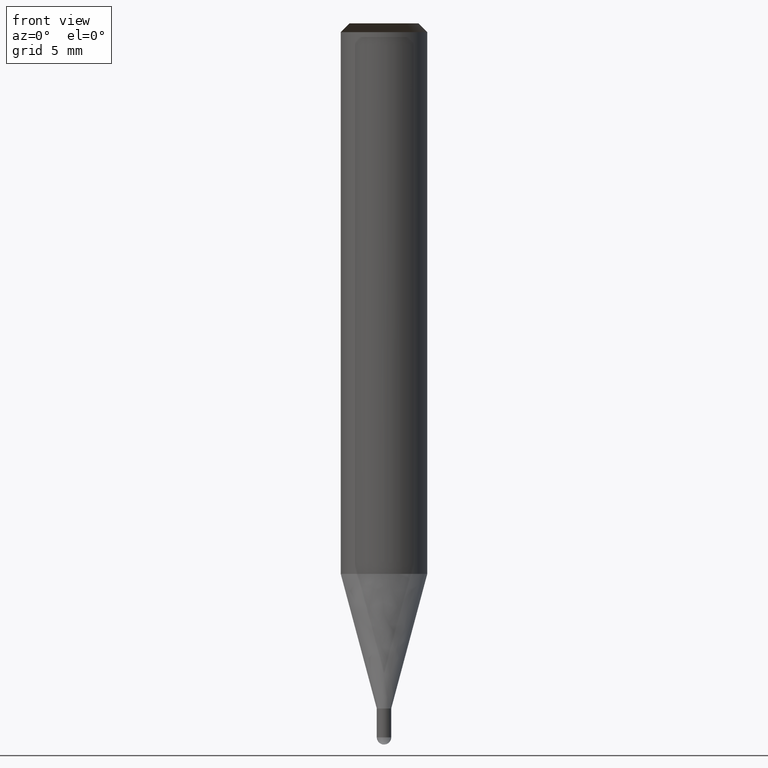
[diagram: clean part render]
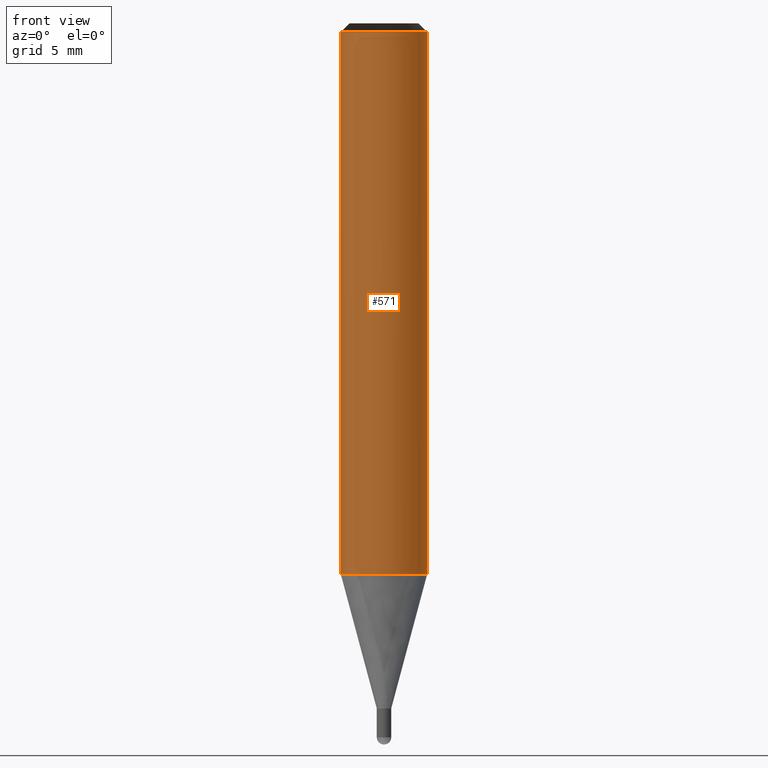
[diagram: same view with one face highlighted and labeled with its STEP entity id]
A machine part, front view. The second image highlights one B-rep face of the part: STEP entity #571.
In plain terms, the highlighted face is a freeform B-spline surface patch.
Its self-contained STEP definition (entity closure, byte-faithful):
#243=CARTESIAN_POINT('',(3.0,0.0,-0.0));
#247=CARTESIAN_POINT('',(-3.0,0.0,-0.0));
#248=CARTESIAN_POINT('',(3.0,0.0,37.569));
#252=CARTESIAN_POINT('',(-3.0,0.0,37.569));
#262=CARTESIAN_POINT('',(-3.0,-3.0,-0.0));
#263=CARTESIAN_POINT('',(0.0,-3.0,-0.0));
#264=CARTESIAN_POINT('',(3.0,-3.0,-0.0));
#265=CARTESIAN_POINT('',(-3.0,-3.0,37.569));
#266=CARTESIAN_POINT('',(0.0,-3.0,37.569));
#267=CARTESIAN_POINT('',(3.0,-3.0,37.569));
#552=(
BOUNDED_SURFACE()
B_SPLINE_SURFACE(1,2,(
(#247,#262,#263,#264,#243),
(#252,#265,#266,#267,#248)
), .UNSPECIFIED.,.F.,.F.,.F.)
B_SPLINE_SURFACE_WITH_KNOTS((2,2),(3,2,3),(
0.0,1.0),(
0.0,0.5,1.0), .UNSPECIFIED.)
GEOMETRIC_REPRESENTATION_ITEM()
RATIONAL_B_SPLINE_SURFACE(((1.0,0.707106781187,1.0,0.707106781187,1.0),
(1.0,0.707106781187,1.0,0.707106781187,1.0)
))
REPRESENTATION_ITEM('')
SURFACE()
);
#553=(
BOUNDED_CURVE()
B_SPLINE_CURVE(1,(#252,#247),.UNSPECIFIED.,.F.,.F.)
B_SPLINE_CURVE_WITH_KNOTS((2,2),
(0.0,1.0),.UNSPECIFIED.)
CURVE()
GEOMETRIC_REPRESENTATION_ITEM()
RATIONAL_B_SPLINE_CURVE((1.0,1.0))
REPRESENTATION_ITEM('')
);
#554=(
BOUNDED_CURVE()
B_SPLINE_CURVE(2,(#247,#262,#263,#264,#243),.UNSPECIFIED.,.F.,.F.)
B_SPLINE_CURVE_WITH_KNOTS((3,2,3),
(0.0,0.5,1.0),.UNSPECIFIED.)
CURVE()
GEOMETRIC_REPRESENTATION_ITEM()
RATIONAL_B_SPLINE_CURVE((1.0,0.707106781187,1.0,0.707106781187,1.0))
REPRESENTATION_ITEM('')
);
#555=(
BOUNDED_CURVE()
B_SPLINE_CURVE(1,(#243,#248),.UNSPECIFIED.,.F.,.F.)
B_SPLINE_CURVE_WITH_KNOTS((2,2),
(0.0,1.0),.UNSPECIFIED.)
CURVE()
GEOMETRIC_REPRESENTATION_ITEM()
RATIONAL_B_SPLINE_CURVE((1.0,1.0))
REPRESENTATION_ITEM('')
);
#556=(
BOUNDED_CURVE()
B_SPLINE_CURVE(2,(#248,#267,#266,#265,#252),.UNSPECIFIED.,.F.,.F.)
B_SPLINE_CURVE_WITH_KNOTS((3,2,3),
(0.0,0.5,1.0),.UNSPECIFIED.)
CURVE()
GEOMETRIC_REPRESENTATION_ITEM()
RATIONAL_B_SPLINE_CURVE((1.0,0.707106781187,1.0,0.707106781187,1.0))
REPRESENTATION_ITEM('')
);
#557=VERTEX_POINT('',#243);
#558=VERTEX_POINT('',#247);
#559=VERTEX_POINT('',#248);
#560=VERTEX_POINT('',#252);
#561=EDGE_CURVE('',#560,#558,#553,.T.);
#562=EDGE_CURVE('',#558,#557,#554,.T.);
#563=EDGE_CURVE('',#557,#559,#555,.T.);
#564=EDGE_CURVE('',#559,#560,#556,.T.);
#565=ORIENTED_EDGE('',*,*,#561,.T.);
#566=ORIENTED_EDGE('',*,*,#562,.T.);
#567=ORIENTED_EDGE('',*,*,#563,.T.);
#568=ORIENTED_EDGE('',*,*,#564,.T.);
#569=EDGE_LOOP('',(#565,#566,#567,#568));
#570=FACE_OUTER_BOUND('',#569,.T.);
#571=ADVANCED_FACE('',(#570),#552,.T.);